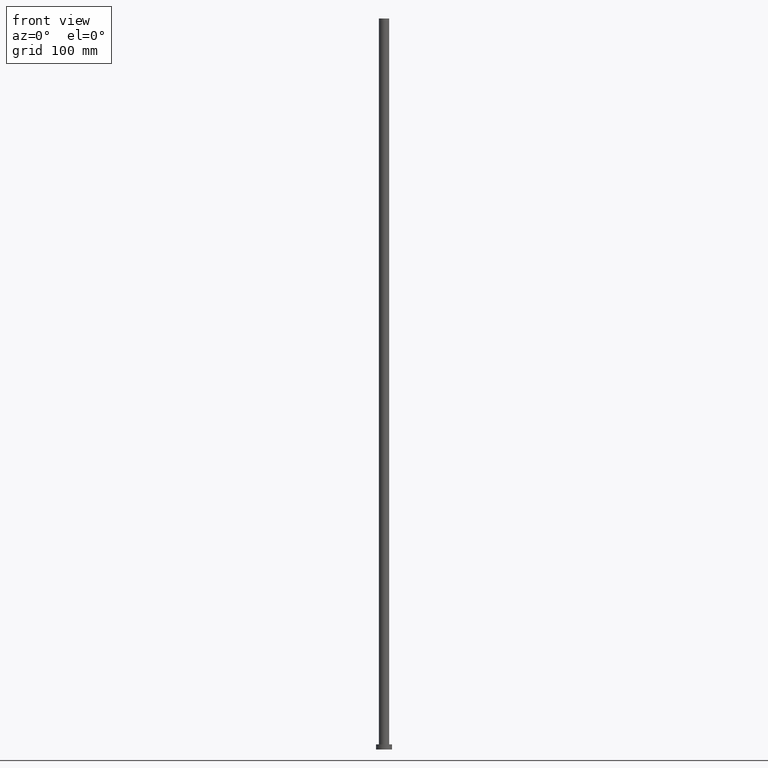
[diagram: clean part render]
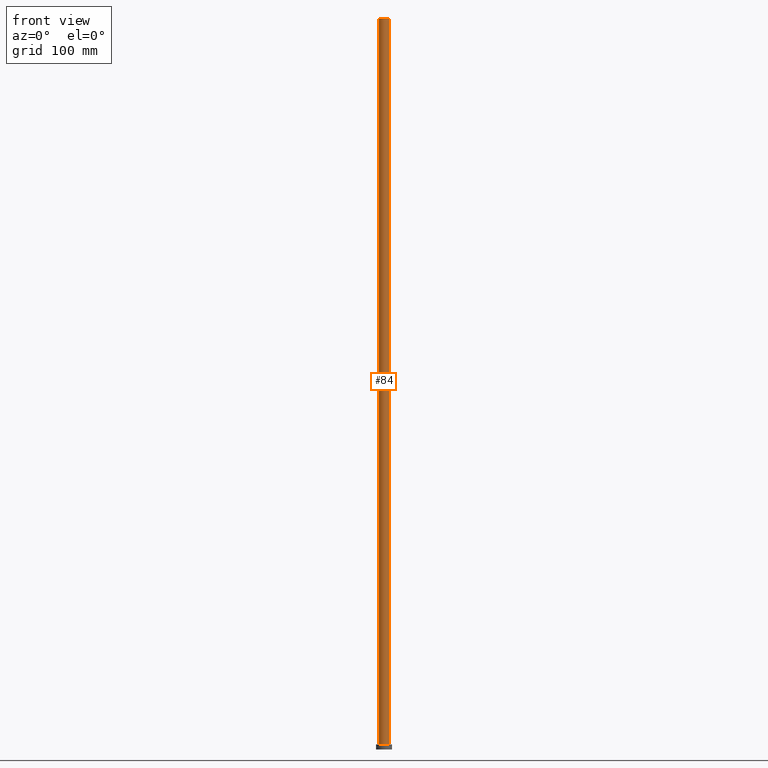
[diagram: same view with one face highlighted and labeled with its STEP entity id]
A machine part, front view. The second image highlights one B-rep face of the part: STEP entity #84.
In plain terms, the highlighted cylindrical surface (edge-blend (fillet) strip) has radius 7 mm, axis along (-0, -0, -1).
Its self-contained STEP definition (entity closure, byte-faithful):
#11 = DIRECTION ( 'NONE',  ( 1.000000000000000000, 0.000000000000000000, 0.000000000000000000 ) ) ;
#12 = CARTESIAN_POINT ( 'NONE',  ( -7.000000000000000888, 0.000000000000000000, 1000.000000000000000 ) ) ;
#18 = CIRCLE ( 'NONE', #140, 7.000000000000000888 ) ;
#28 = VERTEX_POINT ( 'NONE', #161 ) ;
#30 = DIRECTION ( 'NONE',  ( -0.000000000000000000, -0.000000000000000000, -1.000000000000000000 ) ) ;
#34 = DIRECTION ( 'NONE',  ( 0.000000000000000000, 0.000000000000000000, 1.000000000000000000 ) ) ;
#38 = EDGE_CURVE ( 'NONE', #86, #28, #147, .T. ) ;
#45 = ORIENTED_EDGE ( 'NONE', *, *, #188, .T. ) ;
#50 = CYLINDRICAL_SURFACE ( 'NONE', #197, 7.000000000000000888 ) ;
#59 = EDGE_LOOP ( 'NONE', ( #242, #216, #88, #45 ) ) ;
#62 = DIRECTION ( 'NONE',  ( 0.000000000000000000, 0.000000000000000000, 1.000000000000000000 ) ) ;
#66 = FACE_OUTER_BOUND ( 'NONE', #59, .T. ) ;
#67 = LINE ( 'NONE', #12, #95 ) ;
#70 = LINE ( 'NONE', #129, #168 ) ;
#84 = ADVANCED_FACE ( 'NONE', ( #66 ), #50, .T. ) ;
#86 = VERTEX_POINT ( 'NONE', #128 ) ;
#88 = ORIENTED_EDGE ( 'NONE', *, *, #255, .T. ) ;
#95 = VECTOR ( 'NONE', #231, 1000.000000000000000 ) ;
#121 = AXIS2_PLACEMENT_3D ( 'NONE', #137, #62, #179 ) ;
#128 = CARTESIAN_POINT ( 'NONE',  ( -7.000000000000000888, 0.000000000000000000, 1000.000000000000000 ) ) ;
#129 = CARTESIAN_POINT ( 'NONE',  ( 7.000000000000000888, 8.572527594031474176E-16, 1000.000000000000000 ) ) ;
#137 = CARTESIAN_POINT ( 'NONE',  ( 0.000000000000000000, 0.000000000000000000, 1000.000000000000000 ) ) ;
#140 = AXIS2_PLACEMENT_3D ( 'NONE', #245, #34, #11 ) ;
#144 = DIRECTION ( 'NONE',  ( -0.000000000000000000, -0.000000000000000000, -1.000000000000000000 ) ) ;
#147 = CIRCLE ( 'NONE', #121, 7.000000000000000888 ) ;
#161 = CARTESIAN_POINT ( 'NONE',  ( 7.000000000000000888, 8.572527594031474176E-16, 1000.000000000000000 ) ) ;
#168 = VECTOR ( 'NONE', #144, 1000.000000000000000 ) ;
#179 = DIRECTION ( 'NONE',  ( 1.000000000000000000, 0.000000000000000000, 0.000000000000000000 ) ) ;
#180 = DIRECTION ( 'NONE',  ( -1.000000000000000000, 0.000000000000000000, 0.000000000000000000 ) ) ;
#187 = CARTESIAN_POINT ( 'NONE',  ( -7.000000000000000888, 0.000000000000000000, 7.000000000000000000 ) ) ;
#188 = EDGE_CURVE ( 'NONE', #194, #235, #18, .T. ) ;
#194 = VERTEX_POINT ( 'NONE', #187 ) ;
#197 = AXIS2_PLACEMENT_3D ( 'NONE', #223, #30, #180 ) ;
#216 = ORIENTED_EDGE ( 'NONE', *, *, #38, .F. ) ;
#223 = CARTESIAN_POINT ( 'NONE',  ( 0.000000000000000000, 0.000000000000000000, 1000.000000000000000 ) ) ;
#225 = EDGE_CURVE ( 'NONE', #28, #235, #70, .T. ) ;
#229 = CARTESIAN_POINT ( 'NONE',  ( 7.000000000000000888, 8.572527594031474176E-16, 7.000000000000000000 ) ) ;
#231 = DIRECTION ( 'NONE',  ( -0.000000000000000000, -0.000000000000000000, -1.000000000000000000 ) ) ;
#235 = VERTEX_POINT ( 'NONE', #229 ) ;
#242 = ORIENTED_EDGE ( 'NONE', *, *, #225, .F. ) ;
#245 = CARTESIAN_POINT ( 'NONE',  ( 0.000000000000000000, 0.000000000000000000, 7.000000000000000000 ) ) ;
#255 = EDGE_CURVE ( 'NONE', #86, #194, #67, .T. ) ;